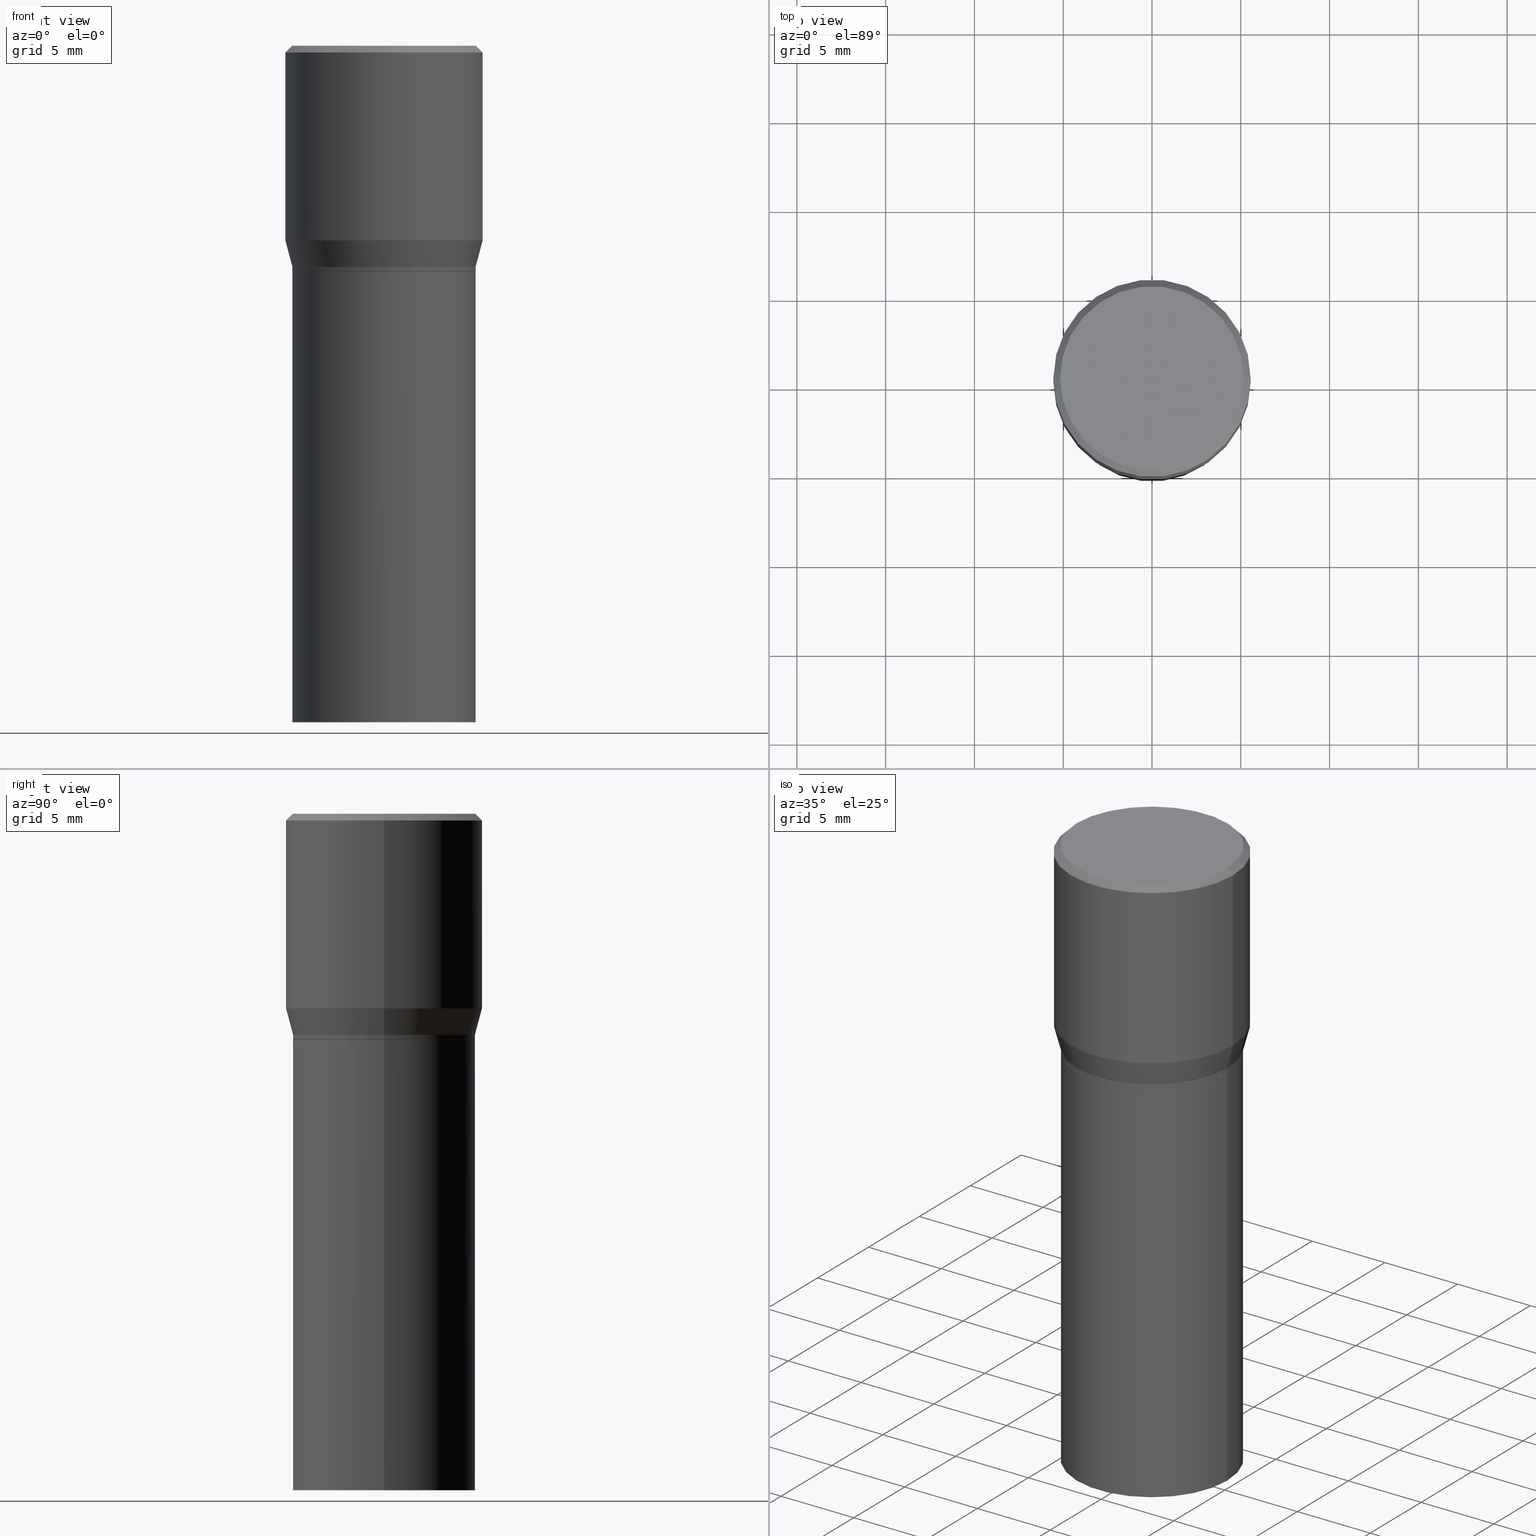
[diagram: canonical four-view strip — front | top / right | iso, engineering-drawing reading convention]
A machine part, canonical four-view strip (front | top / right | iso — engineering-drawing reading convention). The complete STEP part file that produces these views, byte-faithful:
ISO-10303-21;
HEADER;
FILE_DESCRIPTION (( 'STEP AP203' ),
    '1' );
FILE_NAME ('30351.STEP',
    '2024-03-13T16:08:38',
    ( '' ),
    ( '' ),
    'SwSTEP 2.0',
    'SolidWorks 2023',
    '' );
FILE_SCHEMA (( 'CONFIG_CONTROL_DESIGN' ));
ENDSEC;

DATA;
#1 = CARTESIAN_POINT ( 'NONE',  ( -0.2026000000000000023, -3.035318595974993861E-16, -0.5000000000000001110 ) ) ;
#2 = DIRECTION ( 'NONE',  ( 2.438088387897960049E-29, -3.491481338843145188E-15, -1.000000000000000000 ) ) ;
#3 = CARTESIAN_POINT ( 'NONE',  ( 1.055448208544146876E-29, -1.506900319041867721E-15, -0.4315934048615475138 ) ) ;
#4 = ORIENTED_EDGE ( 'NONE', *, *, #163, .T. ) ;
#5 = CIRCLE ( 'NONE', #68, 0.2031000000000000028 ) ;
#6 = CARTESIAN_POINT ( 'NONE',  ( 1.222734403092568719E-29, -1.745740669421573186E-15, -0.5000000000000001110 ) ) ;
#7 = ORIENTED_EDGE ( 'NONE', *, *, #168, .F. ) ;
#8 = ADVANCED_FACE ( 'NONE', ( #310 ), #357, .T. ) ;
#9 = CARTESIAN_POINT ( 'NONE',  ( 1.222734403092568719E-29, -1.745740669421573186E-15, -0.5000000000000001110 ) ) ;
#10 = ORIENTED_EDGE ( 'NONE', *, *, #87, .F. ) ;
#11 = ORIENTED_EDGE ( 'NONE', *, *, #21, .F. ) ;
#12 = ADVANCED_FACE ( 'NONE', ( #315 ), #221, .T. ) ;
#13 = CARTESIAN_POINT ( 'NONE',  ( -0.2187500000000000000, 7.746759649129616577E-16, -0.01499999999999999944 ) ) ;
#14 = AXIS2_PLACEMENT_3D ( 'NONE', #141, #2, #174 ) ;
#15 = DIRECTION ( 'NONE',  ( 1.000000000000000000, -6.982962677686266711E-15, 4.876176775795935793E-29 ) ) ;
#16 = ORIENTED_EDGE ( 'NONE', *, *, #406, .T. ) ;
#17 = LINE ( 'NONE', #439, #377 ) ;
#18 = DIRECTION ( 'NONE',  ( 0.2588190451025211836, 1.565188264969622559E-15, 0.9659258262890679791 ) ) ;
#19 = ORIENTED_EDGE ( 'NONE', *, *, #464, .T. ) ;
#20 = CIRCLE ( 'NONE', #326, 0.2031000000000000028 ) ;
#21 = EDGE_CURVE ( 'NONE', #299, #279, #192, .T. ) ;
#22 = AXIS2_PLACEMENT_3D ( 'NONE', #96, #417, #63 ) ;
#23 = PERSON_AND_ORGANIZATION ( #290, #166 ) ;
#24 = CC_DESIGN_PERSON_AND_ORGANIZATION_ASSIGNMENT ( #91, #134, ( #60 ) ) ;
#25 = CARTESIAN_POINT ( 'NONE',  ( 0.2187500000000000000, -3.034423404785738170E-15, -0.4315934048615475138 ) ) ;
#26 = PRODUCT_DEFINITION_SHAPE ( 'NONE', 'NONE',  #60 ) ;
#27 = VERTEX_POINT ( 'NONE', #240 ) ;
#28 = ORIENTED_EDGE ( 'NONE', *, *, #464, .F. ) ;
#29 = DATE_TIME_ROLE ( 'classification_date' ) ;
#30 = VECTOR ( 'NONE', #189, 39.37007874015748143 ) ;
#31 = APPROVAL_ROLE ( '' ) ;
#32 = CIRCLE ( 'NONE', #365, 0.2187500000000000000 ) ;
#33 = PRODUCT_DEFINITION_FORMATION_WITH_SPECIFIED_SOURCE ( 'ANY', '', #414, .NOT_KNOWN. ) ;
#34 = CYLINDRICAL_SURFACE ( 'NONE', #92, 0.2031000000000000028 ) ;
#35 = DATE_AND_TIME ( #202, #286 ) ;
#36 = EDGE_CURVE ( 'NONE', #55, #227, #190, .T. ) ;
#37 = LINE ( 'NONE', #111, #142 ) ;
#38 = AXIS2_PLACEMENT_3D ( 'NONE', #197, #88, #453 ) ;
#39 = FACE_OUTER_BOUND ( 'NONE', #328, .T. ) ;
#40 = CC_DESIGN_PERSON_AND_ORGANIZATION_ASSIGNMENT ( #93, #425, ( #414 ) ) ;
#41 = DIRECTION ( 'NONE',  ( -1.000000000000000000, 6.982962677686265922E-15, -4.876176775795935793E-29 ) ) ;
#42 = FACE_OUTER_BOUND ( 'NONE', #445, .T. ) ;
#43 = CARTESIAN_POINT ( 'NONE',  ( -2.592568563193567003E-45, 3.701500806376036554E-31, 1.060151966214568974E-16 ) ) ;
#44 = EDGE_LOOP ( 'NONE', ( #177, #151, #325, #452 ) ) ;
#45 = CIRCLE ( 'NONE', #432, 0.2037499999999999867 ) ;
#46 = CC_DESIGN_SECURITY_CLASSIFICATION ( #132, ( #33 ) ) ;
#47 = PLANE ( 'NONE',  #441 ) ;
#48 = VERTEX_POINT ( 'NONE', #351 ) ;
#49 = ORIENTED_EDGE ( 'NONE', *, *, #126, .F. ) ;
#50 = ADVANCED_FACE ( 'NONE', ( #245 ), #313, .F. ) ;
#51 = DIRECTION ( 'NONE',  ( 2.445468806185136597E-29, -3.491481338843145583E-15, -1.000000000000000000 ) ) ;
#52 = ORIENTED_EDGE ( 'NONE', *, *, #247, .F. ) ;
#53 = ORIENTED_EDGE ( 'NONE', *, *, #371, .F. ) ;
#54 = DIRECTION ( 'NONE',  ( 1.000000000000000000, -6.982962677686264344E-15, 0.000000000000000000 ) ) ;
#55 = VERTEX_POINT ( 'NONE', #243 ) ;
#56 = AXIS2_PLACEMENT_3D ( 'NONE', #386, #97, #348 ) ;
#57 = DIRECTION ( 'NONE',  ( 0.7071067811865452413, -7.319954787623248157E-15, -0.7071067811865497932 ) ) ;
#58 = FACE_OUTER_BOUND ( 'NONE', #59, .T. ) ;
#59 = EDGE_LOOP ( 'NONE', ( #404, #49, #295, #338 ) ) ;
#60 = PRODUCT_DEFINITION ( 'UNKNOWN', '', #33, #100 ) ;
#61 = AXIS2_PLACEMENT_3D ( 'NONE', #195, #51, #124 ) ;
#62 = CARTESIAN_POINT ( 'NONE',  ( 1.198279715030717173E-29, -1.710825856033141537E-15, -0.4900000000000001021 ) ) ;
#63 = DIRECTION ( 'NONE',  ( 1.000000000000000000, 0.000000000000000000, 0.000000000000000000 ) ) ;
#64 = ADVANCED_FACE ( 'NONE', ( #419 ), #270, .T. ) ;
#65 = APPROVAL_DATE_TIME ( #354, #300 ) ;
#66 = PERSON_AND_ORGANIZATION ( #290, #166 ) ;
#67 = CARTESIAN_POINT ( 'NONE',  ( 1.222734403092568719E-29, -1.745740669421573186E-15, -0.5000000000000001110 ) ) ;
#68 = AXIS2_PLACEMENT_3D ( 'NONE', #182, #410, #54 ) ;
#69 = CARTESIAN_POINT ( 'NONE',  ( 1.422778645578576487E-15, 0.2037499999999999867, -6.583817244785623957E-16 ) ) ;
#70 = CC_DESIGN_APPROVAL ( #431, ( #33 ) ) ;
#71 = PLANE ( 'NONE',  #449 ) ;
#72 = ADVANCED_FACE ( 'NONE', ( #388 ), #34, .T. ) ;
#73 = CARTESIAN_POINT ( 'NONE',  ( 1.222734403092568719E-29, -1.745740669421573186E-15, -0.5000000000000001110 ) ) ;
#74 = ORIENTED_EDGE ( 'NONE', *, *, #36, .T. ) ;
#75 = DIRECTION ( 'NONE',  ( -2.445468806185136597E-29, 3.491481338843145583E-15, 1.000000000000000000 ) ) ;
#76 = CONICAL_SURFACE ( 'NONE', #131, 0.2187500000000000000, 0.7853981633974450594 ) ;
#77 = EDGE_CURVE ( 'NONE', #448, #55, #37, .T. ) ;
#78 = FACE_OUTER_BOUND ( 'NONE', #260, .T. ) ;
#79 = ORIENTED_EDGE ( 'NONE', *, *, #237, .T. ) ;
#80 = ORIENTED_EDGE ( 'NONE', *, *, #222, .T. ) ;
#81 = CARTESIAN_POINT ( 'NONE',  ( 1.222734403092568719E-29, -1.745740669421573186E-15, -0.5000000000000001110 ) ) ;
#82 = ORIENTED_EDGE ( 'NONE', *, *, #378, .F. ) ;
#83 = ORIENTED_EDGE ( 'NONE', *, *, #175, .T. ) ;
#84 = LINE ( 'NONE', #402, #337 ) ;
#85 = DIRECTION ( 'NONE',  ( 1.000000000000000000, -6.982962677686266711E-15, 0.000000000000000000 ) ) ;
#86 = ORIENTED_EDGE ( 'NONE', *, *, #242, .F. ) ;
#87 = EDGE_CURVE ( 'NONE', #48, #364, #20, .T. ) ;
#88 = DIRECTION ( 'NONE',  ( -2.445468806185136597E-29, 3.491481338843145583E-15, 1.000000000000000000 ) ) ;
#89 = ORIENTED_EDGE ( 'NONE', *, *, #135, .T. ) ;
#90 =( CONVERSION_BASED_UNIT ( 'INCH', #349 ) LENGTH_UNIT ( ) NAMED_UNIT ( #409 ) );
#91 = PERSON_AND_ORGANIZATION ( #290, #166 ) ;
#92 = AXIS2_PLACEMENT_3D ( 'NONE', #98, #201, #361 ) ;
#93 = PERSON_AND_ORGANIZATION ( #290, #166 ) ;
#94 = DIRECTION ( 'NONE',  ( 1.000000000000000000, -6.982962677686266711E-15, 0.000000000000000000 ) ) ;
#95 = CALENDAR_DATE ( 2024, 13, 3 ) ;
#96 = CARTESIAN_POINT ( 'NONE',  ( 0.000000000000000000, 0.000000000000000000, 0.000000000000000000 ) ) ;
#97 = DIRECTION ( 'NONE',  ( -2.445468806185136597E-29, 3.491481338843145583E-15, 1.000000000000000000 ) ) ;
#98 = CARTESIAN_POINT ( 'NONE',  ( 0.000000000000000000, 0.000000000000000000, 0.000000000000000000 ) ) ;
#99 = CALENDAR_DATE ( 2024, 13, 3 ) ;
#100 = DESIGN_CONTEXT ( 'detailed design', #207, 'design' ) ;
#101 =( GEOMETRIC_REPRESENTATION_CONTEXT ( 3 ) GLOBAL_UNCERTAINTY_ASSIGNED_CONTEXT ( ( #138 ) ) GLOBAL_UNIT_ASSIGNED_CONTEXT ( ( #90, #383, #412 ) ) REPRESENTATION_CONTEXT ( 'NONE', 'WORKASPACE' ) );
#102 = ADVANCED_FACE ( 'NONE', ( #436 ), #284, .F. ) ;
#103 = CARTESIAN_POINT ( 'NONE',  ( 1.055448208544146876E-29, -1.506900319041867721E-15, -0.4315934048615475138 ) ) ;
#104 = EDGE_CURVE ( 'NONE', #368, #203, #231, .T. ) ;
#105 = DIRECTION ( 'NONE',  ( 2.438088387897960049E-29, -3.491481338843145188E-15, -1.000000000000000000 ) ) ;
#106 = CIRCLE ( 'NONE', #157, 0.2026000000000000023 ) ;
#107 = DIRECTION ( 'NONE',  ( -2.445468806185136597E-29, 3.491481338843145583E-15, 1.000000000000000000 ) ) ;
#108 = ADVANCED_FACE ( 'NONE', ( #430 ), #283, .T. ) ;
#109 = CIRCLE ( 'NONE', #296, 0.2187500000000000000 ) ;
#110 = MANIFOLD_SOLID_BREP ( 'Body-Move/Copy2[2]', #123 ) ;
#111 = CARTESIAN_POINT ( 'NONE',  ( 0.2031000000000000028, -1.418239719838080775E-15, 9.903515031641546145E-30 ) ) ;
#112 = ORIENTED_EDGE ( 'NONE', *, *, #250, .T. ) ;
#113 = CARTESIAN_POINT ( 'NONE',  ( 0.2031000000000000028, -6.655461728102798952E-15, -1.500000000000000222 ) ) ;
#114 = EDGE_LOOP ( 'NONE', ( #396, #16 ) ) ;
#115 = DIRECTION ( 'NONE',  ( -2.445468806185136877E-29, 3.491481338843145188E-15, 1.000000000000000000 ) ) ;
#116 = VERTEX_POINT ( 'NONE', #113 ) ;
#117 = CIRCLE ( 'NONE', #172, 0.2031000000000000028 ) ;
#118 = ORIENTED_EDGE ( 'NONE', *, *, #104, .T. ) ;
#119 = FACE_OUTER_BOUND ( 'NONE', #307, .T. ) ;
#120 = ORIENTED_EDGE ( 'NONE', *, *, #184, .F. ) ;
#121 = CARTESIAN_POINT ( 'NONE',  ( 0.2031000000000000028, -1.418239719838080775E-15, 9.903515031641546145E-30 ) ) ;
#122 = CARTESIAN_POINT ( 'NONE',  ( -0.2031000000000000028, -2.048369042514382480E-15, -0.5000000000000001110 ) ) ;
#123 = CLOSED_SHELL ( 'NONE', ( #72, #12, #282, #8, #154, #64, #274, #391, #144, #352, #140, #108 ) ) ;
#124 = DIRECTION ( 'NONE',  ( -1.000000000000000000, 6.982962677686266711E-15, 0.000000000000000000 ) ) ;
#125 = ORIENTED_EDGE ( 'NONE', *, *, #222, .F. ) ;
#126 = EDGE_CURVE ( 'NONE', #191, #183, #178, .T. ) ;
#127 = COORDINATED_UNIVERSAL_TIME_OFFSET ( 5, 0, .BEHIND. ) ;
#128 = AXIS2_PLACEMENT_3D ( 'NONE', #43, #107, #393 ) ;
#129 = DIRECTION ( 'NONE',  ( 1.000000000000000000, -6.982962677686268288E-15, 0.000000000000000000 ) ) ;
#130 = VECTOR ( 'NONE', #346, 39.37007874015748143 ) ;
#131 = AXIS2_PLACEMENT_3D ( 'NONE', #156, #332, #228 ) ;
#132 = SECURITY_CLASSIFICATION ( '', '', #316 ) ;
#133 = CARTESIAN_POINT ( 'NONE',  ( 3.576687321579069994E-29, -5.368277968210015545E-15, -1.500000000000000222 ) ) ;
#134 = PERSON_AND_ORGANIZATION_ROLE ( 'creator' ) ;
#135 = EDGE_CURVE ( 'NONE', #437, #27, #32, .T. ) ;
#136 = CONICAL_SURFACE ( 'NONE', #459, 0.2031000000000000583, 0.2617993877991499074 ) ;
#137 = DIRECTION ( 'NONE',  ( 1.000000000000000000, -6.982962677686266711E-15, 4.876176775795935793E-29 ) ) ;
#138 = UNCERTAINTY_MEASURE_WITH_UNIT (LENGTH_MEASURE( 1.000000000000000082E-05 ), #90, 'distance_accuracy_value', 'NONE');
#139 = DIRECTION ( 'NONE',  ( -2.445468806185136597E-29, 3.491481338843145583E-15, 1.000000000000000000 ) ) ;
#140 = ADVANCED_FACE ( 'NONE', ( #362 ), #314, .T. ) ;
#141 = CARTESIAN_POINT ( 'NONE',  ( 1.418239719838093003E-15, 0.2030999999999982819, -0.5000000000000007772 ) ) ;
#142 = VECTOR ( 'NONE', #252, 39.37007874015748143 ) ;
#143 = CARTESIAN_POINT ( 'NONE',  ( 0.2187500000000000000, -1.527523085743870843E-15, 1.066663669705360885E-29 ) ) ;
#144 = ADVANCED_FACE ( 'NONE', ( #39 ), #71, .F. ) ;
#145 = DIRECTION ( 'NONE',  ( -2.445468806185136597E-29, 3.491481338843145583E-15, 1.000000000000000000 ) ) ;
#146 = DIRECTION ( 'NONE',  ( -2.445468806185136597E-29, 3.491481338843145583E-15, 1.000000000000000000 ) ) ;
#147 = ORIENTED_EDGE ( 'NONE', *, *, #126, .T. ) ;
#148 = CARTESIAN_POINT ( 'NONE',  ( 0.2187500000000000000, -1.579895305826517922E-15, -0.01499999999999999944 ) ) ;
#149 = VECTOR ( 'NONE', #57, 39.37007874015748143 ) ;
#150 = EDGE_CURVE ( 'NONE', #191, #279, #218, .T. ) ;
#151 = ORIENTED_EDGE ( 'NONE', *, *, #450, .T. ) ;
#152 = DIRECTION ( 'NONE',  ( 1.000000000000000000, -6.982962677686268288E-15, 0.000000000000000000 ) ) ;
#153 = CARTESIAN_POINT ( 'NONE',  ( 0.2026000000000000023, -3.160488907920811151E-15, -0.5000000000000001110 ) ) ;
#154 = ADVANCED_FACE ( 'NONE', ( #248 ), #136, .T. ) ;
#155 = ORIENTED_EDGE ( 'NONE', *, *, #335, .F. ) ;
#156 = CARTESIAN_POINT ( 'NONE',  ( 3.668203209277705088E-31, -5.237222008264718399E-17, -0.01499999999999999944 ) ) ;
#157 = AXIS2_PLACEMENT_3D ( 'NONE', #67, #303, #152 ) ;
#158 = ORIENTED_EDGE ( 'NONE', *, *, #77, .T. ) ;
#159 = ADVANCED_FACE ( 'NONE', ( #42 ), #281, .T. ) ;
#160 = APPLICATION_PROTOCOL_DEFINITION ( 'international standard', 'config_control_design', 1994, #302 ) ;
#161 = DIRECTION ( 'NONE',  ( 1.000000000000000000, -6.982962677686265922E-15, 0.000000000000000000 ) ) ;
#162 = ORIENTED_EDGE ( 'NONE', *, *, #250, .F. ) ;
#163 = EDGE_CURVE ( 'NONE', #403, #448, #311, .T. ) ;
#164 = PERSON_AND_ORGANIZATION ( #290, #166 ) ;
#165 = AXIS2_PLACEMENT_3D ( 'NONE', #447, #329, #367 ) ;
#166 = ORGANIZATION ( 'UNSPECIFIED', 'UNSPECIFIED', '' ) ;
#167 = DATE_TIME_ROLE ( 'creation_date' ) ;
#168 = EDGE_CURVE ( 'NONE', #437, #299, #176, .T. ) ;
#169 = DIRECTION ( 'NONE',  ( -2.445468806185136597E-29, 3.491481338843145583E-15, 1.000000000000000000 ) ) ;
#170 = CARTESIAN_POINT ( 'NONE',  ( 0.000000000000000000, 0.000000000000000000, 0.000000000000000000 ) ) ;
#171 = DIRECTION ( 'NONE',  ( -2.445468806185136597E-29, 3.491481338843145583E-15, 1.000000000000000000 ) ) ;
#172 = AXIS2_PLACEMENT_3D ( 'NONE', #9, #146, #223 ) ;
#173 = DIRECTION ( 'NONE',  ( -2.445468806185136597E-29, 3.491481338843145583E-15, 1.000000000000000000 ) ) ;
#174 = DIRECTION ( 'NONE',  ( -1.000000000000000000, 6.982962677686265922E-15, -4.876176775795935793E-29 ) ) ;
#175 = EDGE_CURVE ( 'NONE', #183, #191, #45, .T. ) ;
#176 = LINE ( 'NONE', #143, #418 ) ;
#177 = ORIENTED_EDGE ( 'NONE', *, *, #378, .T. ) ;
#178 = CIRCLE ( 'NONE', #128, 0.2037499999999999867 ) ;
#179 = DIRECTION ( 'NONE',  ( -2.445468806185136597E-29, 3.491481338843145583E-15, 1.000000000000000000 ) ) ;
#180 = EDGE_LOOP ( 'NONE', ( #53, #125 ) ) ;
#181 = APPROVAL_PERSON_ORGANIZATION ( #164, #300, #271 ) ;
#182 = CARTESIAN_POINT ( 'NONE',  ( 3.668203209277704895E-29, -5.237222008264718177E-15, -1.500000000000000222 ) ) ;
#183 = VERTEX_POINT ( 'NONE', #219 ) ;
#184 = EDGE_CURVE ( 'NONE', #27, #437, #109, .T. ) ;
#185 = EDGE_LOOP ( 'NONE', ( #28, #330, #225, #415 ) ) ;
#186 = LINE ( 'NONE', #226, #30 ) ;
#187 = ORIENTED_EDGE ( 'NONE', *, *, #242, .T. ) ;
#188 = ORIENTED_EDGE ( 'NONE', *, *, #163, .F. ) ;
#189 = DIRECTION ( 'NONE',  ( -2.445468806185136877E-29, 3.491481338843145188E-15, 1.000000000000000000 ) ) ;
#190 = CIRCLE ( 'NONE', #353, 0.2031000000000000583 ) ;
#191 = VERTEX_POINT ( 'NONE', #392 ) ;
#192 = CIRCLE ( 'NONE', #433, 0.2187500000000000000 ) ;
#193 = CC_DESIGN_APPROVAL ( #289, ( #60 ) ) ;
#194 = DIRECTION ( 'NONE',  ( 1.000000000000000000, -6.982962677686265922E-15, 4.876176775795935793E-29 ) ) ;
#195 = CARTESIAN_POINT ( 'NONE',  ( 3.668203209277705088E-31, -5.237222008264718399E-17, -0.01499999999999999944 ) ) ;
#196 = EDGE_LOOP ( 'NONE', ( #89, #19, #11, #7 ) ) ;
#197 = CARTESIAN_POINT ( 'NONE',  ( 3.668203209277705088E-31, -5.237222008264718399E-17, -0.01499999999999999944 ) ) ;
#198 = AXIS2_PLACEMENT_3D ( 'NONE', #369, #75, #293 ) ;
#199 = APPROVAL_PERSON_ORGANIZATION ( #66, #431, #31 ) ;
#200 = DIRECTION ( 'NONE',  ( -2.445468806185136877E-29, 3.491481338843145188E-15, 1.000000000000000000 ) ) ;
#201 = DIRECTION ( 'NONE',  ( -2.445468806185136597E-29, 3.491481338843145583E-15, 1.000000000000000000 ) ) ;
#202 = CALENDAR_DATE ( 2024, 13, 3 ) ;
#203 = VERTEX_POINT ( 'NONE', #1 ) ;
#204 = CARTESIAN_POINT ( 'NONE',  ( 1.198279715030717173E-29, -1.710825856033141537E-15, -0.4900000000000001021 ) ) ;
#205 = COORDINATED_UNIVERSAL_TIME_OFFSET ( 5, 0, .BEHIND. ) ;
#206 = DIRECTION ( 'NONE',  ( -2.445468806185136597E-29, 3.491481338843145583E-15, 1.000000000000000000 ) ) ;
#207 = APPLICATION_CONTEXT ( 'configuration controlled 3d designs of mechanical parts and assemblies' ) ;
#208 = DATE_AND_TIME ( #99, #344 ) ;
#209 = AXIS2_PLACEMENT_3D ( 'NONE', #170, #173, #137 ) ;
#210 = ADVANCED_BREP_SHAPE_REPRESENTATION ( '30351', ( #424, #110, #22 ), #101 ) ;
#211 = PRODUCT_RELATED_PRODUCT_CATEGORY ( 'detail', '', ( #414 ) ) ;
#212 = DIRECTION ( 'NONE',  ( 1.000000000000000000, -6.982962677686265133E-15, 0.000000000000000000 ) ) ;
#213 = DIRECTION ( 'NONE',  ( 1.000000000000000000, -6.982962677686265922E-15, 0.000000000000000000 ) ) ;
#214 = CIRCLE ( 'NONE', #320, 0.2031000000000000583 ) ;
#215 = AXIS2_PLACEMENT_3D ( 'NONE', #457, #171, #129 ) ;
#216 = EDGE_CURVE ( 'NONE', #203, #368, #106, .T. ) ;
#217 = CARTESIAN_POINT ( 'NONE',  ( 1.198279715030717173E-29, -1.710825856033141537E-15, -0.4900000000000001021 ) ) ;
#218 = LINE ( 'NONE', #428, #375 ) ;
#219 = CARTESIAN_POINT ( 'NONE',  ( 0.2037499999999999867, -1.475466312070559275E-15, 1.060151966214670170E-16 ) ) ;
#220 = ORIENTED_EDGE ( 'NONE', *, *, #237, .F. ) ;
#221 = CONICAL_SURFACE ( 'NONE', #215, 0.2026000000000000023, 0.7853981633974824739 ) ;
#222 = EDGE_CURVE ( 'NONE', #440, #116, #5, .T. ) ;
#223 = DIRECTION ( 'NONE',  ( 1.000000000000000000, -6.982962677686265922E-15, 0.000000000000000000 ) ) ;
#224 = FACE_OUTER_BOUND ( 'NONE', #292, .T. ) ;
#225 = ORIENTED_EDGE ( 'NONE', *, *, #168, .T. ) ;
#226 = CARTESIAN_POINT ( 'NONE',  ( -0.2031000000000000028, 1.443112296328763497E-15, -9.990357168307714203E-30 ) ) ;
#227 = VERTEX_POINT ( 'NONE', #446 ) ;
#228 = DIRECTION ( 'NONE',  ( -1.000000000000000000, 6.982962677686266711E-15, 0.000000000000000000 ) ) ;
#229 = VECTOR ( 'NONE', #297, 39.37007874015748854 ) ;
#230 = ORIENTED_EDGE ( 'NONE', *, *, #450, .F. ) ;
#231 = CIRCLE ( 'NONE', #251, 0.2026000000000000023 ) ;
#232 = LOCAL_TIME ( 12, 8, 38.00000000000000000, #390 ) ;
#233 = CARTESIAN_POINT ( 'NONE',  ( 0.2187500000000000000, -1.553106157095169608E-15, -0.01499999999999999944 ) ) ;
#234 = LINE ( 'NONE', #269, #130 ) ;
#235 = ORIENTED_EDGE ( 'NONE', *, *, #345, .T. ) ;
#236 = EDGE_CURVE ( 'NONE', #227, #27, #379, .T. ) ;
#237 = EDGE_CURVE ( 'NONE', #368, #448, #258, .T. ) ;
#238 = CONICAL_SURFACE ( 'NONE', #61, 0.2187500000000000000, 0.7853981633974450594 ) ;
#239 = APPLICATION_PROTOCOL_DEFINITION ( 'international standard', 'config_control_design', 1994, #207 ) ;
#240 = CARTESIAN_POINT ( 'NONE',  ( -0.2187500000000000000, 4.741191543335144142E-17, -0.4315934048615475138 ) ) ;
#241 = PERSON_AND_ORGANIZATION ( #290, #166 ) ;
#242 = EDGE_CURVE ( 'NONE', #203, #403, #17, .T. ) ;
#243 = CARTESIAN_POINT ( 'NONE',  ( 0.2031000000000000583, -3.129065575871222509E-15, -0.4900000000000001021 ) ) ;
#244 = APPROVAL_DATE_TIME ( #309, #431 ) ;
#245 = FACE_OUTER_BOUND ( 'NONE', #180, .T. ) ;
#246 = APPROVAL_STATUS ( 'not_yet_approved' ) ;
#247 = EDGE_CURVE ( 'NONE', #116, #48, #400, .T. ) ;
#248 = FACE_OUTER_BOUND ( 'NONE', #398, .T. ) ;
#249 = DIRECTION ( 'NONE',  ( -0.7071067811865452413, 2.468850131082233000E-15, -0.7071067811865497932 ) ) ;
#250 = EDGE_CURVE ( 'NONE', #440, #364, #186, .T. ) ;
#251 = AXIS2_PLACEMENT_3D ( 'NONE', #73, #394, #291 ) ;
#252 = DIRECTION ( 'NONE',  ( -2.445468806185136877E-29, 3.491481338843145188E-15, 1.000000000000000000 ) ) ;
#253 = DIRECTION ( 'NONE',  ( -2.445468806185136597E-29, 3.491481338843145583E-15, 1.000000000000000000 ) ) ;
#254 = DIRECTION ( 'NONE',  ( -2.445468806185136597E-29, 3.491481338843145583E-15, 1.000000000000000000 ) ) ;
#255 = ORIENTED_EDGE ( 'NONE', *, *, #216, .F. ) ;
#256 = CARTESIAN_POINT ( 'NONE',  ( 0.000000000000000000, 0.000000000000000000, 0.000000000000000000 ) ) ;
#257 = ORIENTED_EDGE ( 'NONE', *, *, #247, .T. ) ;
#258 = LINE ( 'NONE', #153, #426 ) ;
#259 = EDGE_LOOP ( 'NONE', ( #374, #334, #294, #120 ) ) ;
#260 = EDGE_LOOP ( 'NONE', ( #341, #235, #331, #411 ) ) ;
#261 = FACE_OUTER_BOUND ( 'NONE', #185, .T. ) ;
#262 = DIRECTION ( 'NONE',  ( -2.445468806185136597E-29, 3.491481338843145583E-15, 1.000000000000000000 ) ) ;
#263 = VECTOR ( 'NONE', #115, 39.37007874015748143 ) ;
#264 = ORIENTED_EDGE ( 'NONE', *, *, #236, .T. ) ;
#265 = CARTESIAN_POINT ( 'NONE',  ( -0.2031000000000000028, -3.008826324233883330E-16, -0.4995000000000001661 ) ) ;
#266 = ORIENTED_EDGE ( 'NONE', *, *, #371, .T. ) ;
#267 = CARTESIAN_POINT ( 'NONE',  ( -0.2031000000000000028, -2.048369042514382480E-15, -1.500000000000000222 ) ) ;
#268 = PERSON_AND_ORGANIZATION_ROLE ( 'design_supplier' ) ;
#269 = CARTESIAN_POINT ( 'NONE',  ( -0.2031000000000000028, 1.443112296328763497E-15, -9.990357168307714203E-30 ) ) ;
#270 = CONICAL_SURFACE ( 'NONE', #280, 0.2031000000000000583, 0.2617993877991499074 ) ;
#271 = APPROVAL_ROLE ( '' ) ;
#272 = CARTESIAN_POINT ( 'NONE',  ( 3.668203209277705088E-31, -5.237222008264718399E-17, -0.01499999999999999944 ) ) ;
#273 = DATE_AND_TIME ( #278, #366 ) ;
#274 = ADVANCED_FACE ( 'NONE', ( #261 ), #405, .T. ) ;
#275 = DIRECTION ( 'NONE',  ( -2.438088387897960049E-29, 3.491481338843145188E-15, 1.000000000000000000 ) ) ;
#276 = COORDINATED_UNIVERSAL_TIME_OFFSET ( 5, 0, .BEHIND. ) ;
#277 = DIRECTION ( 'NONE',  ( 1.000000000000000000, -6.982962677686265922E-15, 0.000000000000000000 ) ) ;
#278 = CALENDAR_DATE ( 2024, 13, 3 ) ;
#279 = VERTEX_POINT ( 'NONE', #13 ) ;
#280 = AXIS2_PLACEMENT_3D ( 'NONE', #458, #169, #423 ) ;
#281 = CYLINDRICAL_SURFACE ( 'NONE', #209, 0.2031000000000000028 ) ;
#282 = ADVANCED_FACE ( 'NONE', ( #78 ), #76, .T. ) ;
#283 = CYLINDRICAL_SURFACE ( 'NONE', #389, 0.2031000000000000028 ) ;
#284 = PLANE ( 'NONE',  #14 ) ;
#285 = AXIS2_PLACEMENT_3D ( 'NONE', #133, #275, #422 ) ;
#286 = LOCAL_TIME ( 12, 8, 38.00000000000000000, #127 ) ;
#287 = CARTESIAN_POINT ( 'NONE',  ( -2.592568563193567003E-45, 3.701500806376036554E-31, 1.060151966214568974E-16 ) ) ;
#288 = EDGE_LOOP ( 'NONE', ( #118, #187, #82, #220 ) ) ;
#289 = APPROVAL ( #454, 'UNSPECIFIED' ) ;
#290 = PERSON ( 'UNSPECIFIED', 'UNSPECIFIED', 'UNSPECIFIED', ('UNSPECIFIED'), ('UNSPECIFIED'), ('UNSPECIFIED') ) ;
#291 = DIRECTION ( 'NONE',  ( 1.000000000000000000, -6.982962677686268288E-15, 0.000000000000000000 ) ) ;
#292 = EDGE_LOOP ( 'NONE', ( #266, #112, #10, #52 ) ) ;
#293 = DIRECTION ( 'NONE',  ( 1.000000000000000000, -6.982962677686264344E-15, 0.000000000000000000 ) ) ;
#294 = ORIENTED_EDGE ( 'NONE', *, *, #335, .T. ) ;
#295 = ORIENTED_EDGE ( 'NONE', *, *, #150, .T. ) ;
#296 = AXIS2_PLACEMENT_3D ( 'NONE', #103, #179, #327 ) ;
#297 = DIRECTION ( 'NONE',  ( -0.2588190451025211836, 5.211531920934547886E-15, 0.9659258262890679791 ) ) ;
#298 = ORIENTED_EDGE ( 'NONE', *, *, #216, .T. ) ;
#299 = VERTEX_POINT ( 'NONE', #148 ) ;
#300 = APPROVAL ( #246, 'UNSPECIFIED' ) ;
#301 = LINE ( 'NONE', #233, #149 ) ;
#302 = APPLICATION_CONTEXT ( 'configuration controlled 3d designs of mechanical parts and assemblies' ) ;
#303 = DIRECTION ( 'NONE',  ( -2.445468806185136597E-29, 3.491481338843145583E-15, 1.000000000000000000 ) ) ;
#304 = CARTESIAN_POINT ( 'NONE',  ( 0.2026000000000000023, -3.160488907920811151E-15, -0.5000000000000001110 ) ) ;
#305 = CLOSED_SHELL ( 'NONE', ( #306, #50, #159, #102 ) ) ;
#306 = ADVANCED_FACE ( 'NONE', ( #224 ), #336, .T. ) ;
#307 = EDGE_LOOP ( 'NONE', ( #370, #255 ) ) ;
#308 = LINE ( 'NONE', #416, #385 ) ;
#309 = DATE_AND_TIME ( #95, #442 ) ;
#310 = FACE_OUTER_BOUND ( 'NONE', #196, .T. ) ;
#311 = CIRCLE ( 'NONE', #343, 0.2031000000000000028 ) ;
#312 = PERSON_AND_ORGANIZATION_ROLE ( 'classification_officer' ) ;
#313 = PLANE ( 'NONE',  #285 ) ;
#314 = CONICAL_SURFACE ( 'NONE', #408, 0.2026000000000000023, 0.7853981633974824739 ) ;
#315 = FACE_OUTER_BOUND ( 'NONE', #288, .T. ) ;
#316 = SECURITY_CLASSIFICATION_LEVEL ( 'unclassified' ) ;
#317 = DIRECTION ( 'NONE',  ( -2.445468806185136877E-29, 3.491481338843145188E-15, 1.000000000000000000 ) ) ;
#318 = CIRCLE ( 'NONE', #465, 0.2031000000000000028 ) ;
#319 = CC_DESIGN_DATE_AND_TIME_ASSIGNMENT ( #273, #167, ( #60 ) ) ;
#320 = AXIS2_PLACEMENT_3D ( 'NONE', #204, #380, #161 ) ;
#321 = DIRECTION ( 'NONE',  ( -2.445468806185136597E-29, 3.491481338843145583E-15, 1.000000000000000000 ) ) ;
#322 = DIRECTION ( 'NONE',  ( 1.000000000000000000, -6.982962677686266711E-15, 0.000000000000000000 ) ) ;
#323 = CC_DESIGN_PERSON_AND_ORGANIZATION_ASSIGNMENT ( #420, #268, ( #33 ) ) ;
#324 = CARTESIAN_POINT ( 'NONE',  ( 0.000000000000000000, 0.000000000000000000, 0.000000000000000000 ) ) ;
#325 = ORIENTED_EDGE ( 'NONE', *, *, #36, .F. ) ;
#326 = AXIS2_PLACEMENT_3D ( 'NONE', #6, #139, #213 ) ;
#327 = DIRECTION ( 'NONE',  ( 1.000000000000000000, -6.982962677686265133E-15, 0.000000000000000000 ) ) ;
#328 = EDGE_LOOP ( 'NONE', ( #147, #83 ) ) ;
#329 = DIRECTION ( 'NONE',  ( -2.445468806185136597E-29, 3.491481338843145583E-15, 1.000000000000000000 ) ) ;
#330 = ORIENTED_EDGE ( 'NONE', *, *, #184, .T. ) ;
#331 = ORIENTED_EDGE ( 'NONE', *, *, #21, .T. ) ;
#332 = DIRECTION ( 'NONE',  ( 2.445468806185136597E-29, -3.491481338843145583E-15, -1.000000000000000000 ) ) ;
#333 = ORIENTED_EDGE ( 'NONE', *, *, #135, .F. ) ;
#334 = ORIENTED_EDGE ( 'NONE', *, *, #461, .T. ) ;
#335 = EDGE_CURVE ( 'NONE', #55, #437, #84, .T. ) ;
#336 = CYLINDRICAL_SURFACE ( 'NONE', #359, 0.2031000000000000028 ) ;
#337 = VECTOR ( 'NONE', #18, 39.37007874015748854 ) ;
#338 = ORIENTED_EDGE ( 'NONE', *, *, #413, .T. ) ;
#339 = DIRECTION ( 'NONE',  ( -0.7071067811865715536, 7.493145998870439357E-15, 0.7071067811865232589 ) ) ;
#340 = DIRECTION ( 'NONE',  ( 0.7071067811865715536, -2.468850131082509496E-15, 0.7071067811865232589 ) ) ;
#341 = ORIENTED_EDGE ( 'NONE', *, *, #175, .F. ) ;
#342 =( LENGTH_UNIT ( ) NAMED_UNIT ( * ) SI_UNIT ( $, .METRE. ) );
#343 = AXIS2_PLACEMENT_3D ( 'NONE', #397, #321, #322 ) ;
#344 = LOCAL_TIME ( 12, 8, 38.00000000000000000, #205 ) ;
#345 = EDGE_CURVE ( 'NONE', #183, #299, #301, .T. ) ;
#346 = DIRECTION ( 'NONE',  ( -2.445468806185136877E-29, 3.491481338843145188E-15, 1.000000000000000000 ) ) ;
#347 = SHAPE_DEFINITION_REPRESENTATION ( #26, #210 ) ;
#348 = DIRECTION ( 'NONE',  ( 1.000000000000000000, -6.982962677686266711E-15, 4.876176775795935232E-29 ) ) ;
#349 = LENGTH_MEASURE_WITH_UNIT ( LENGTH_MEASURE( 0.02539999999999999897 ), #342 );
#350 = COORDINATED_UNIVERSAL_TIME_OFFSET ( 5, 0, .BEHIND. ) ;
#351 = CARTESIAN_POINT ( 'NONE',  ( 0.2031000000000000028, -3.163980389259653764E-15, -0.5000000000000001110 ) ) ;
#352 = ADVANCED_FACE ( 'NONE', ( #119 ), #47, .F. ) ;
#353 = AXIS2_PLACEMENT_3D ( 'NONE', #62, #206, #277 ) ;
#354 = DATE_AND_TIME ( #387, #232 ) ;
#355 = CARTESIAN_POINT ( 'NONE',  ( 1.222734403092568719E-29, -1.745740669421573186E-15, -0.5000000000000001110 ) ) ;
#356 = CC_DESIGN_PERSON_AND_ORGANIZATION_ASSIGNMENT ( #241, #312, ( #132 ) ) ;
#357 = CYLINDRICAL_SURFACE ( 'NONE', #56, 0.2187500000000000000 ) ;
#358 = DIRECTION ( 'NONE',  ( -2.445468806185136597E-29, 3.491481338843145583E-15, 1.000000000000000000 ) ) ;
#359 = AXIS2_PLACEMENT_3D ( 'NONE', #256, #372, #15 ) ;
#360 = APPROVAL_PERSON_ORGANIZATION ( #384, #289, #463 ) ;
#361 = DIRECTION ( 'NONE',  ( 1.000000000000000000, -6.982962677686266711E-15, 4.876176775795935793E-29 ) ) ;
#362 = FACE_OUTER_BOUND ( 'NONE', #444, .T. ) ;
#363 = DIRECTION ( 'NONE',  ( 1.000000000000000000, -6.982962677686265922E-15, 0.000000000000000000 ) ) ;
#364 = VERTEX_POINT ( 'NONE', #122 ) ;
#365 = AXIS2_PLACEMENT_3D ( 'NONE', #3, #145, #212 ) ;
#366 = LOCAL_TIME ( 12, 8, 38.00000000000000000, #350 ) ;
#367 = DIRECTION ( 'NONE',  ( 1.000000000000000000, -6.982962677686266711E-15, 4.876176775795935232E-29 ) ) ;
#368 = VERTEX_POINT ( 'NONE', #304 ) ;
#369 = CARTESIAN_POINT ( 'NONE',  ( 3.668203209277704895E-29, -5.237222008264718177E-15, -1.500000000000000222 ) ) ;
#370 = ORIENTED_EDGE ( 'NONE', *, *, #104, .F. ) ;
#371 = EDGE_CURVE ( 'NONE', #116, #440, #399, .T. ) ;
#372 = DIRECTION ( 'NONE',  ( -2.445468806185136597E-29, 3.491481338843145583E-15, 1.000000000000000000 ) ) ;
#373 = ORIENTED_EDGE ( 'NONE', *, *, #461, .F. ) ;
#374 = ORIENTED_EDGE ( 'NONE', *, *, #236, .F. ) ;
#375 = VECTOR ( 'NONE', #249, 39.37007874015748143 ) ;
#376 = DIRECTION ( 'NONE',  ( -2.438088387897960049E-29, 3.491481338843145188E-15, 1.000000000000000000 ) ) ;
#377 = VECTOR ( 'NONE', #339, 39.37007874015748854 ) ;
#378 = EDGE_CURVE ( 'NONE', #448, #403, #318, .T. ) ;
#379 = LINE ( 'NONE', #443, #229 ) ;
#380 = DIRECTION ( 'NONE',  ( -2.445468806185136597E-29, 3.491481338843145583E-15, 1.000000000000000000 ) ) ;
#381 = CIRCLE ( 'NONE', #38, 0.2187500000000000000 ) ;
#382 = MECHANICAL_CONTEXT ( 'NONE', #302, 'mechanical' ) ;
#383 =( NAMED_UNIT ( * ) PLANE_ANGLE_UNIT ( ) SI_UNIT ( $, .RADIAN. ) );
#384 = PERSON_AND_ORGANIZATION ( #290, #166 ) ;
#385 = VECTOR ( 'NONE', #200, 39.37007874015748143 ) ;
#386 = CARTESIAN_POINT ( 'NONE',  ( 0.000000000000000000, 0.000000000000000000, 0.000000000000000000 ) ) ;
#387 = CALENDAR_DATE ( 2024, 13, 3 ) ;
#388 = FACE_OUTER_BOUND ( 'NONE', #44, .T. ) ;
#389 = AXIS2_PLACEMENT_3D ( 'NONE', #324, #429, #435 ) ;
#390 = COORDINATED_UNIVERSAL_TIME_OFFSET ( 5, 0, .BEHIND. ) ;
#391 = ADVANCED_FACE ( 'NONE', ( #58 ), #238, .T. ) ;
#392 = CARTESIAN_POINT ( 'NONE',  ( -0.2037499999999999867, 1.448964755619900421E-15, 1.060151966214468518E-16 ) ) ;
#393 = DIRECTION ( 'NONE',  ( 1.000000000000000000, -6.982962677686266711E-15, 4.875065411617369217E-29 ) ) ;
#394 = DIRECTION ( 'NONE',  ( -2.445468806185136597E-29, 3.491481338843145583E-15, 1.000000000000000000 ) ) ;
#395 = DIRECTION ( 'NONE',  ( 1.000000000000000000, -6.982962677686266711E-15, 4.875065411617369217E-29 ) ) ;
#396 = ORIENTED_EDGE ( 'NONE', *, *, #87, .T. ) ;
#397 = CARTESIAN_POINT ( 'NONE',  ( 1.221511668689476057E-29, -1.743994928752151682E-15, -0.4995000000000001661 ) ) ;
#398 = EDGE_LOOP ( 'NONE', ( #74, #264, #333, #155 ) ) ;
#399 = CIRCLE ( 'NONE', #198, 0.2031000000000000028 ) ;
#400 = LINE ( 'NONE', #121, #263 ) ;
#401 = ORIENTED_EDGE ( 'NONE', *, *, #406, .F. ) ;
#402 = CARTESIAN_POINT ( 'NONE',  ( 0.2031000000000000583, -3.129065575871222509E-15, -0.4900000000000001021 ) ) ;
#403 = VERTEX_POINT ( 'NONE', #265 ) ;
#404 = ORIENTED_EDGE ( 'NONE', *, *, #345, .F. ) ;
#405 = CYLINDRICAL_SURFACE ( 'NONE', #165, 0.2187500000000000000 ) ;
#406 = EDGE_CURVE ( 'NONE', #364, #48, #117, .T. ) ;
#407 = EDGE_LOOP ( 'NONE', ( #230, #4, #158, #373 ) ) ;
#408 = AXIS2_PLACEMENT_3D ( 'NONE', #355, #358, #466 ) ;
#409 = DIMENSIONAL_EXPONENTS ( 1.000000000000000000, 0.000000000000000000, 0.000000000000000000, 0.000000000000000000, 0.000000000000000000, 0.000000000000000000, 0.000000000000000000 ) ;
#410 = DIRECTION ( 'NONE',  ( -2.445468806185136597E-29, 3.491481338843145583E-15, 1.000000000000000000 ) ) ;
#411 = ORIENTED_EDGE ( 'NONE', *, *, #150, .F. ) ;
#412 =( NAMED_UNIT ( * ) SI_UNIT ( $, .STERADIAN. ) SOLID_ANGLE_UNIT ( ) );
#413 = EDGE_CURVE ( 'NONE', #279, #299, #381, .T. ) ;
#414 = PRODUCT ( '30351', '30351', '', ( #382 ) ) ;
#415 = ORIENTED_EDGE ( 'NONE', *, *, #413, .F. ) ;
#416 = CARTESIAN_POINT ( 'NONE',  ( -0.2187500000000000000, 1.554312234475219157E-15, -1.076017050993260622E-29 ) ) ;
#417 = DIRECTION ( 'NONE',  ( 0.000000000000000000, 0.000000000000000000, 1.000000000000000000 ) ) ;
#418 = VECTOR ( 'NONE', #317, 39.37007874015748143 ) ;
#419 = FACE_OUTER_BOUND ( 'NONE', #259, .T. ) ;
#420 = PERSON_AND_ORGANIZATION ( #290, #166 ) ;
#421 = APPROVAL_STATUS ( 'not_yet_approved' ) ;
#422 = DIRECTION ( 'NONE',  ( 1.000000000000000000, -6.982962677686265922E-15, 4.876176775795935793E-29 ) ) ;
#423 = DIRECTION ( 'NONE',  ( 1.000000000000000000, -6.982962677686265922E-15, 0.000000000000000000 ) ) ;
#424 = MANIFOLD_SOLID_BREP ( 'Body-Move/Copy2[1]', #305 ) ;
#425 = PERSON_AND_ORGANIZATION_ROLE ( 'design_owner' ) ;
#426 = VECTOR ( 'NONE', #340, 39.37007874015748854 ) ;
#427 = PERSON_AND_ORGANIZATION_ROLE ( 'creator' ) ;
#428 = CARTESIAN_POINT ( 'NONE',  ( -0.2187500000000000000, 1.475150865661223567E-15, -0.01499999999999999944 ) ) ;
#429 = DIRECTION ( 'NONE',  ( -2.445468806185136597E-29, 3.491481338843145583E-15, 1.000000000000000000 ) ) ;
#430 = FACE_OUTER_BOUND ( 'NONE', #407, .T. ) ;
#431 = APPROVAL ( #421, 'UNSPECIFIED' ) ;
#432 = AXIS2_PLACEMENT_3D ( 'NONE', #287, #253, #395 ) ;
#433 = AXIS2_PLACEMENT_3D ( 'NONE', #272, #462, #94 ) ;
#434 = CC_DESIGN_APPROVAL ( #300, ( #132 ) ) ;
#435 = DIRECTION ( 'NONE',  ( 1.000000000000000000, -6.982962677686266711E-15, 4.876176775795935793E-29 ) ) ;
#436 = FACE_OUTER_BOUND ( 'NONE', #114, .T. ) ;
#437 = VERTEX_POINT ( 'NONE', #25 ) ;
#438 = CC_DESIGN_PERSON_AND_ORGANIZATION_ASSIGNMENT ( #23, #427, ( #33 ) ) ;
#439 = CARTESIAN_POINT ( 'NONE',  ( -0.2026000000000000023, -3.061810867716101928E-16, -0.5000000000000001110 ) ) ;
#440 = VERTEX_POINT ( 'NONE', #267 ) ;
#441 = AXIS2_PLACEMENT_3D ( 'NONE', #81, #376, #194 ) ;
#442 = LOCAL_TIME ( 12, 8, 38.00000000000000000, #276 ) ;
#443 = CARTESIAN_POINT ( 'NONE',  ( -0.2031000000000000583, -2.677135597043777931E-16, -0.4900000000000001021 ) ) ;
#444 = EDGE_LOOP ( 'NONE', ( #86, #298, #79, #188 ) ) ;
#445 = EDGE_LOOP ( 'NONE', ( #162, #80, #257, #401 ) ) ;
#446 = CARTESIAN_POINT ( 'NONE',  ( -0.2031000000000000583, -1.101508221355132898E-16, -0.4900000000000001021 ) ) ;
#447 = CARTESIAN_POINT ( 'NONE',  ( 0.000000000000000000, 0.000000000000000000, 0.000000000000000000 ) ) ;
#448 = VERTEX_POINT ( 'NONE', #456 ) ;
#449 = AXIS2_PLACEMENT_3D ( 'NONE', #69, #105, #41 ) ;
#450 = EDGE_CURVE ( 'NONE', #403, #227, #234, .T. ) ;
#451 = CARTESIAN_POINT ( 'NONE',  ( 1.221511668689476057E-29, -1.743994928752151682E-15, -0.4995000000000001661 ) ) ;
#452 = ORIENTED_EDGE ( 'NONE', *, *, #77, .F. ) ;
#453 = DIRECTION ( 'NONE',  ( 1.000000000000000000, -6.982962677686266711E-15, 0.000000000000000000 ) ) ;
#454 = APPROVAL_STATUS ( 'not_yet_approved' ) ;
#455 = CC_DESIGN_DATE_AND_TIME_ASSIGNMENT ( #208, #29, ( #132 ) ) ;
#456 = CARTESIAN_POINT ( 'NONE',  ( 0.2031000000000000028, -3.162234648590232655E-15, -0.4995000000000001661 ) ) ;
#457 = CARTESIAN_POINT ( 'NONE',  ( 1.222734403092568719E-29, -1.745740669421573186E-15, -0.5000000000000001110 ) ) ;
#458 = CARTESIAN_POINT ( 'NONE',  ( 1.198279715030717173E-29, -1.710825856033141537E-15, -0.4900000000000001021 ) ) ;
#459 = AXIS2_PLACEMENT_3D ( 'NONE', #217, #254, #363 ) ;
#460 = APPROVAL_DATE_TIME ( #35, #289 ) ;
#461 = EDGE_CURVE ( 'NONE', #227, #55, #214, .T. ) ;
#462 = DIRECTION ( 'NONE',  ( -2.445468806185136597E-29, 3.491481338843145583E-15, 1.000000000000000000 ) ) ;
#463 = APPROVAL_ROLE ( '' ) ;
#464 = EDGE_CURVE ( 'NONE', #27, #279, #308, .T. ) ;
#465 = AXIS2_PLACEMENT_3D ( 'NONE', #451, #262, #85 ) ;
#466 = DIRECTION ( 'NONE',  ( 1.000000000000000000, -6.982962677686268288E-15, 0.000000000000000000 ) ) ;
ENDSEC;
END-ISO-10303-21;
